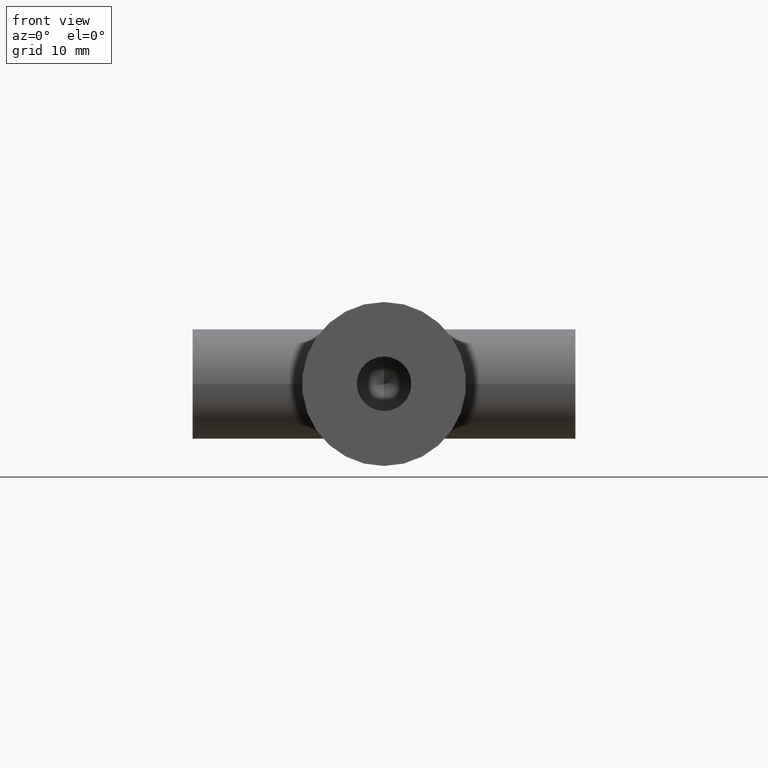
[diagram: clean part render]
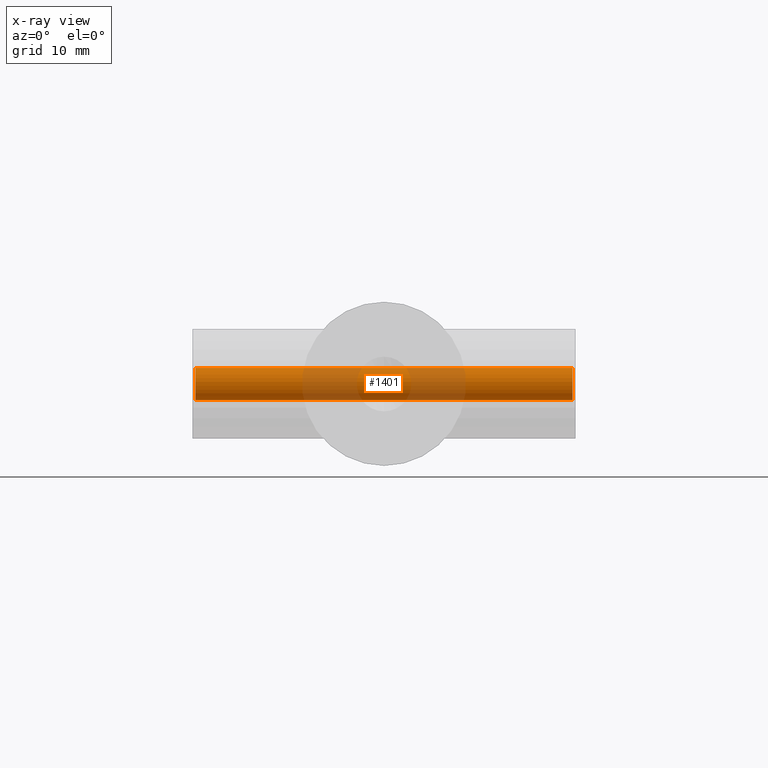
[diagram: x-ray — body ghosted, one internal face saturated and labeled with its STEP entity id]
A machine part, front view, then the same camera in x-ray: the body is ghosted and one INTERNAL B-rep face — a face not visible from any outside direction — is saturated and labeled: STEP entity #1401.
In plain terms, the highlighted cylindrical surface (edge-blend (fillet) strip) has radius 1.5 mm, axis along (-1, 0, 0).
Its self-contained STEP definition (entity closure, byte-faithful):
#50 = AXIS2_PLACEMENT_3D ( 'NONE', #3670, #1264, #106 ) ;
#106 = DIRECTION ( 'NONE',  ( 0.0000000000000000000, -0.2322789101665427600, 0.9726492214009340200 ) ) ;
#134 = FACE_OUTER_BOUND ( 'NONE', #2703, .T. ) ;
#346 = AXIS2_PLACEMENT_3D ( 'NONE', #1957, #3796, #2306 ) ;
#533 = EDGE_CURVE ( 'NONE', #1021, #3853, #3458, .T. ) ;
#550 = CARTESIAN_POINT ( 'NONE',  ( 17.25000000000000000, 12.84841836524981900, -1.458973832101401400 ) ) ;
#695 = ORIENTED_EDGE ( 'NONE', *, *, #3392, .T. ) ;
#739 = CARTESIAN_POINT ( 'NONE',  ( -17.25000000000000000, 12.15158163475019000, 1.458973832101403000 ) ) ;
#774 = ORIENTED_EDGE ( 'NONE', *, *, #1176, .T. ) ;
#807 = VECTOR ( 'NONE', #3542, 1000.000000000000000 ) ;
#865 = CARTESIAN_POINT ( 'NONE',  ( -17.25000000000000000, 12.84841836524981900, -1.458973832101401600 ) ) ;
#870 = DIRECTION ( 'NONE',  ( 0.0000000000000000000, -0.2322789101665427600, 0.9726492214009340200 ) ) ;
#1021 = VERTEX_POINT ( 'NONE', #1460 ) ;
#1134 = ORIENTED_EDGE ( 'NONE', *, *, #533, .F. ) ;
#1176 = EDGE_CURVE ( 'NONE', #2555, #3853, #1303, .T. ) ;
#1264 = DIRECTION ( 'NONE',  ( 1.000000000000000000, 0.0000000000000000000, 0.0000000000000000000 ) ) ;
#1303 = CIRCLE ( 'NONE', #50, 1.500000000000001100 ) ;
#1379 = VECTOR ( 'NONE', #3058, 1000.000000000000000 ) ;
#1401 = ADVANCED_FACE ( 'NONE', ( #134 ), #2316, .T. ) ;
#1460 = CARTESIAN_POINT ( 'NONE',  ( 17.25000000000000000, 12.84841836524981900, -1.458973832101401600 ) ) ;
#1573 = CARTESIAN_POINT ( 'NONE',  ( 17.25000000000000000, 12.15158163475019000, 1.458973832101402700 ) ) ;
#1957 = CARTESIAN_POINT ( 'NONE',  ( 17.25000000000000000, 12.50000000000000400, 7.318364664277154900E-016 ) ) ;
#2035 = AXIS2_PLACEMENT_3D ( 'NONE', #2337, #2908, #870 ) ;
#2293 = CIRCLE ( 'NONE', #2035, 1.500000000000001100 ) ;
#2306 = DIRECTION ( 'NONE',  ( 0.0000000000000000000, 0.2322789101665427600, -0.9726492214009340200 ) ) ;
#2316 = CYLINDRICAL_SURFACE ( 'NONE', #346, 1.500000000000001100 ) ;
#2337 = CARTESIAN_POINT ( 'NONE',  ( 17.25000000000000000, 12.50000000000000400, 7.318364664277154900E-016 ) ) ;
#2555 = VERTEX_POINT ( 'NONE', #739 ) ;
#2565 = LINE ( 'NONE', #1573, #1379 ) ;
#2694 = VERTEX_POINT ( 'NONE', #2868 ) ;
#2703 = EDGE_LOOP ( 'NONE', ( #3354, #695, #774, #1134 ) ) ;
#2868 = CARTESIAN_POINT ( 'NONE',  ( 17.25000000000000000, 12.15158163475019000, 1.458973832101403000 ) ) ;
#2908 = DIRECTION ( 'NONE',  ( 1.000000000000000000, 0.0000000000000000000, 0.0000000000000000000 ) ) ;
#3058 = DIRECTION ( 'NONE',  ( -1.000000000000000000, 0.0000000000000000000, 0.0000000000000000000 ) ) ;
#3167 = EDGE_CURVE ( 'NONE', #2694, #1021, #2293, .T. ) ;
#3354 = ORIENTED_EDGE ( 'NONE', *, *, #3167, .F. ) ;
#3392 = EDGE_CURVE ( 'NONE', #2694, #2555, #2565, .T. ) ;
#3458 = LINE ( 'NONE', #550, #807 ) ;
#3542 = DIRECTION ( 'NONE',  ( -1.000000000000000000, 0.0000000000000000000, 0.0000000000000000000 ) ) ;
#3670 = CARTESIAN_POINT ( 'NONE',  ( -17.25000000000000000, 12.50000000000000400, 7.318364664277154900E-016 ) ) ;
#3796 = DIRECTION ( 'NONE',  ( -1.000000000000000000, 0.0000000000000000000, 0.0000000000000000000 ) ) ;
#3853 = VERTEX_POINT ( 'NONE', #865 ) ;